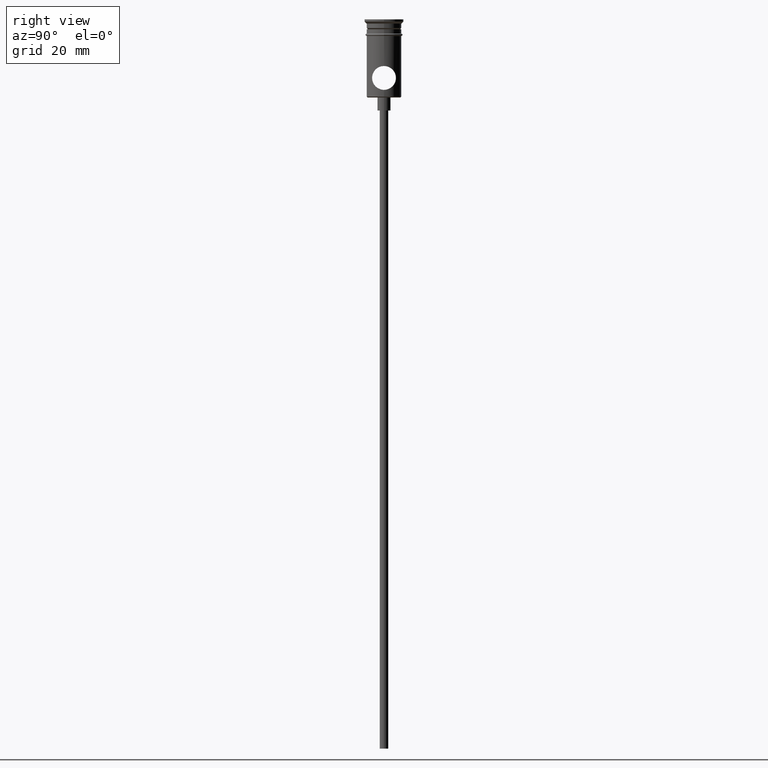
[diagram: clean part render]
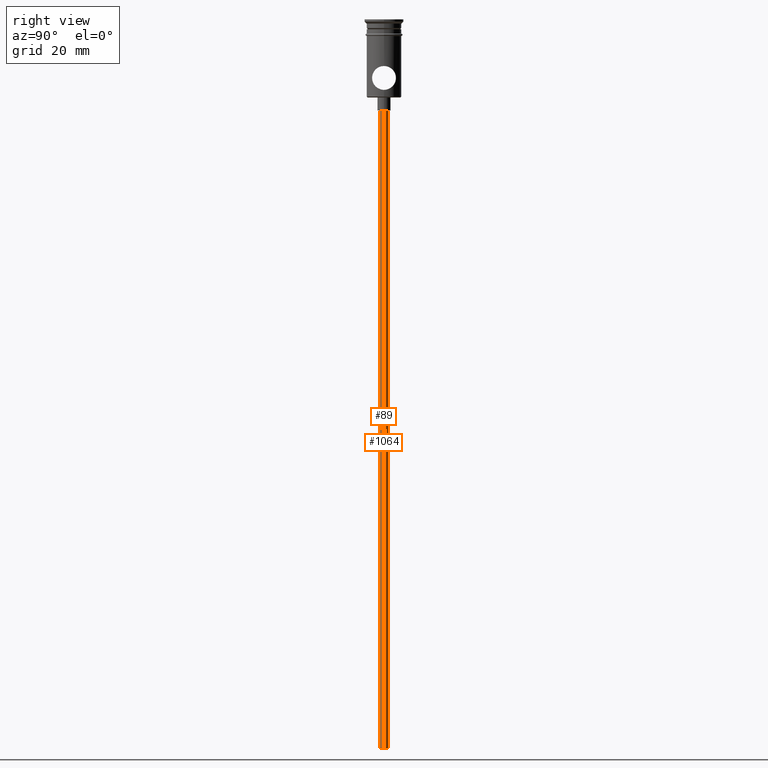
[diagram: same view with one multi-face feature highlighted, each face labeled with its STEP entity id]
A machine part, right view. The highlighted faces form ONE feature: a constant-radius fillet chain: 2 tangent blend faces with common blend radius 1 mm. The faces share edges in the B-rep.
Their STEP definitions:
[1] entity #89 (Cylinder):
#12 = ORIENTED_EDGE ( 'NONE', *, *, #1386, .F. ) ;
#14 = DIRECTION ( 'NONE',  ( -1.000000000000000000, 0.000000000000000000, 0.000000000000000000 ) ) ;
#20 = CARTESIAN_POINT ( 'NONE',  ( -0.9999999999999997780, 1.224646799147352961E-16, -167.9999999999999716 ) ) ;
#32 = CIRCLE ( 'NONE', #127, 0.9999999999999997780 ) ;
#89 = ADVANCED_FACE ( 'NONE', ( #960 ), #1090, .T. ) ;
#90 = CARTESIAN_POINT ( 'NONE',  ( 0.9999999999999997780, 0.000000000000000000, -167.9999999999999716 ) ) ;
#127 = AXIS2_PLACEMENT_3D ( 'NONE', #537, #982, #14 ) ;
#158 = CARTESIAN_POINT ( 'NONE',  ( 0.000000000000000000, 0.000000000000000000, -20.99999999999999645 ) ) ;
#162 = VERTEX_POINT ( 'NONE', #1330 ) ;
#195 = DIRECTION ( 'NONE',  ( -0.000000000000000000, -0.000000000000000000, 1.000000000000000000 ) ) ;
#197 = VECTOR ( 'NONE', #195, 1000.000000000000000 ) ;
#226 = EDGE_LOOP ( 'NONE', ( #12, #305, #787, #270 ) ) ;
#264 = DIRECTION ( 'NONE',  ( 0.000000000000000000, 0.000000000000000000, -1.000000000000000000 ) ) ;
#270 = ORIENTED_EDGE ( 'NONE', *, *, #721, .T. ) ;
#305 = ORIENTED_EDGE ( 'NONE', *, *, #1007, .F. ) ;
#369 = AXIS2_PLACEMENT_3D ( 'NONE', #974, #1278, #625 ) ;
#471 = CARTESIAN_POINT ( 'NONE',  ( -0.9999999999999997780, 1.224646799147352961E-16, -20.99999999999999645 ) ) ;
#489 = CARTESIAN_POINT ( 'NONE',  ( -0.9999999999999997780, 1.224646799147352961E-16, -167.9999999999999716 ) ) ;
#528 = AXIS2_PLACEMENT_3D ( 'NONE', #158, #264, #1368 ) ;
#537 = CARTESIAN_POINT ( 'NONE',  ( 0.000000000000000000, 0.000000000000000000, -167.9999999999999716 ) ) ;
#592 = CARTESIAN_POINT ( 'NONE',  ( 0.9999999999999997780, 0.000000000000000000, -167.9999999999999716 ) ) ;
#625 = DIRECTION ( 'NONE',  ( 1.000000000000000000, 0.000000000000000000, 0.000000000000000000 ) ) ;
#640 = VERTEX_POINT ( 'NONE', #20 ) ;
#702 = LINE ( 'NONE', #489, #1082 ) ;
#721 = EDGE_CURVE ( 'NONE', #162, #1106, #1411, .T. ) ;
#787 = ORIENTED_EDGE ( 'NONE', *, *, #816, .T. ) ;
#816 = EDGE_CURVE ( 'NONE', #1349, #162, #817, .T. ) ;
#817 = LINE ( 'NONE', #90, #197 ) ;
#924 = DIRECTION ( 'NONE',  ( -0.000000000000000000, -0.000000000000000000, 1.000000000000000000 ) ) ;
#960 = FACE_OUTER_BOUND ( 'NONE', #226, .T. ) ;
#974 = CARTESIAN_POINT ( 'NONE',  ( 0.000000000000000000, 0.000000000000000000, -167.9999999999999716 ) ) ;
#982 = DIRECTION ( 'NONE',  ( 0.000000000000000000, 0.000000000000000000, -1.000000000000000000 ) ) ;
#1007 = EDGE_CURVE ( 'NONE', #1349, #640, #32, .T. ) ;
#1082 = VECTOR ( 'NONE', #924, 1000.000000000000000 ) ;
#1090 = CYLINDRICAL_SURFACE ( 'NONE', #369, 0.9999999999999997780 ) ;
#1106 = VERTEX_POINT ( 'NONE', #471 ) ;
#1278 = DIRECTION ( 'NONE',  ( -0.000000000000000000, -0.000000000000000000, 1.000000000000000000 ) ) ;
#1330 = CARTESIAN_POINT ( 'NONE',  ( 0.9999999999999997780, 0.000000000000000000, -20.99999999999999645 ) ) ;
#1349 = VERTEX_POINT ( 'NONE', #592 ) ;
#1368 = DIRECTION ( 'NONE',  ( -1.000000000000000000, 0.000000000000000000, 0.000000000000000000 ) ) ;
#1386 = EDGE_CURVE ( 'NONE', #640, #1106, #702, .T. ) ;
#1411 = CIRCLE ( 'NONE', #528, 0.9999999999999997780 ) ;
[2] entity #1064 (Cylinder):
#20 = CARTESIAN_POINT ( 'NONE',  ( -0.9999999999999997780, 1.224646799147352961E-16, -167.9999999999999716 ) ) ;
#35 = ORIENTED_EDGE ( 'NONE', *, *, #477, .T. ) ;
#39 = ORIENTED_EDGE ( 'NONE', *, *, #118, .F. ) ;
#90 = CARTESIAN_POINT ( 'NONE',  ( 0.9999999999999997780, 0.000000000000000000, -167.9999999999999716 ) ) ;
#102 = CARTESIAN_POINT ( 'NONE',  ( 0.000000000000000000, 0.000000000000000000, -167.9999999999999716 ) ) ;
#118 = EDGE_CURVE ( 'NONE', #640, #1349, #1008, .T. ) ;
#162 = VERTEX_POINT ( 'NONE', #1330 ) ;
#195 = DIRECTION ( 'NONE',  ( -0.000000000000000000, -0.000000000000000000, 1.000000000000000000 ) ) ;
#197 = VECTOR ( 'NONE', #195, 1000.000000000000000 ) ;
#228 = CYLINDRICAL_SURFACE ( 'NONE', #614, 0.9999999999999997780 ) ;
#314 = DIRECTION ( 'NONE',  ( -0.000000000000000000, -0.000000000000000000, 1.000000000000000000 ) ) ;
#394 = ORIENTED_EDGE ( 'NONE', *, *, #816, .F. ) ;
#471 = CARTESIAN_POINT ( 'NONE',  ( -0.9999999999999997780, 1.224646799147352961E-16, -20.99999999999999645 ) ) ;
#477 = EDGE_CURVE ( 'NONE', #1106, #162, #1272, .T. ) ;
#489 = CARTESIAN_POINT ( 'NONE',  ( -0.9999999999999997780, 1.224646799147352961E-16, -167.9999999999999716 ) ) ;
#530 = DIRECTION ( 'NONE',  ( 0.000000000000000000, 0.000000000000000000, -1.000000000000000000 ) ) ;
#592 = CARTESIAN_POINT ( 'NONE',  ( 0.9999999999999997780, 0.000000000000000000, -167.9999999999999716 ) ) ;
#614 = AXIS2_PLACEMENT_3D ( 'NONE', #1209, #314, #748 ) ;
#640 = VERTEX_POINT ( 'NONE', #20 ) ;
#702 = LINE ( 'NONE', #489, #1082 ) ;
#748 = DIRECTION ( 'NONE',  ( 1.000000000000000000, 0.000000000000000000, 0.000000000000000000 ) ) ;
#775 = AXIS2_PLACEMENT_3D ( 'NONE', #102, #530, #1416 ) ;
#816 = EDGE_CURVE ( 'NONE', #1349, #162, #817, .T. ) ;
#817 = LINE ( 'NONE', #90, #197 ) ;
#918 = ORIENTED_EDGE ( 'NONE', *, *, #1386, .T. ) ;
#924 = DIRECTION ( 'NONE',  ( -0.000000000000000000, -0.000000000000000000, 1.000000000000000000 ) ) ;
#955 = CARTESIAN_POINT ( 'NONE',  ( 0.000000000000000000, 0.000000000000000000, -20.99999999999999645 ) ) ;
#1008 = CIRCLE ( 'NONE', #775, 0.9999999999999997780 ) ;
#1039 = EDGE_LOOP ( 'NONE', ( #39, #918, #35, #394 ) ) ;
#1064 = ADVANCED_FACE ( 'NONE', ( #1301 ), #228, .T. ) ;
#1075 = DIRECTION ( 'NONE',  ( -1.000000000000000000, 0.000000000000000000, 0.000000000000000000 ) ) ;
#1082 = VECTOR ( 'NONE', #924, 1000.000000000000000 ) ;
#1106 = VERTEX_POINT ( 'NONE', #471 ) ;
#1209 = CARTESIAN_POINT ( 'NONE',  ( 0.000000000000000000, 0.000000000000000000, -167.9999999999999716 ) ) ;
#1272 = CIRCLE ( 'NONE', #1367, 0.9999999999999997780 ) ;
#1301 = FACE_OUTER_BOUND ( 'NONE', #1039, .T. ) ;
#1330 = CARTESIAN_POINT ( 'NONE',  ( 0.9999999999999997780, 0.000000000000000000, -20.99999999999999645 ) ) ;
#1349 = VERTEX_POINT ( 'NONE', #592 ) ;
#1367 = AXIS2_PLACEMENT_3D ( 'NONE', #955, #1399, #1075 ) ;
#1386 = EDGE_CURVE ( 'NONE', #640, #1106, #702, .T. ) ;
#1399 = DIRECTION ( 'NONE',  ( 0.000000000000000000, 0.000000000000000000, -1.000000000000000000 ) ) ;
#1416 = DIRECTION ( 'NONE',  ( -1.000000000000000000, 0.000000000000000000, 0.000000000000000000 ) ) ;